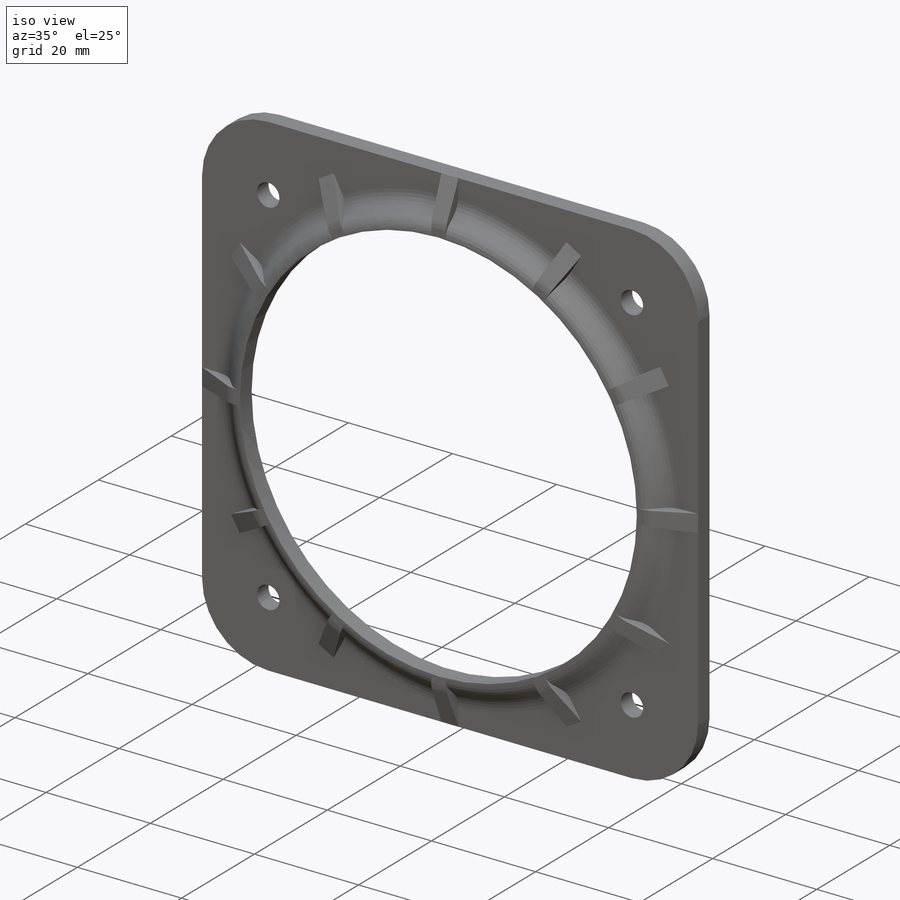
[diagram: iso view]
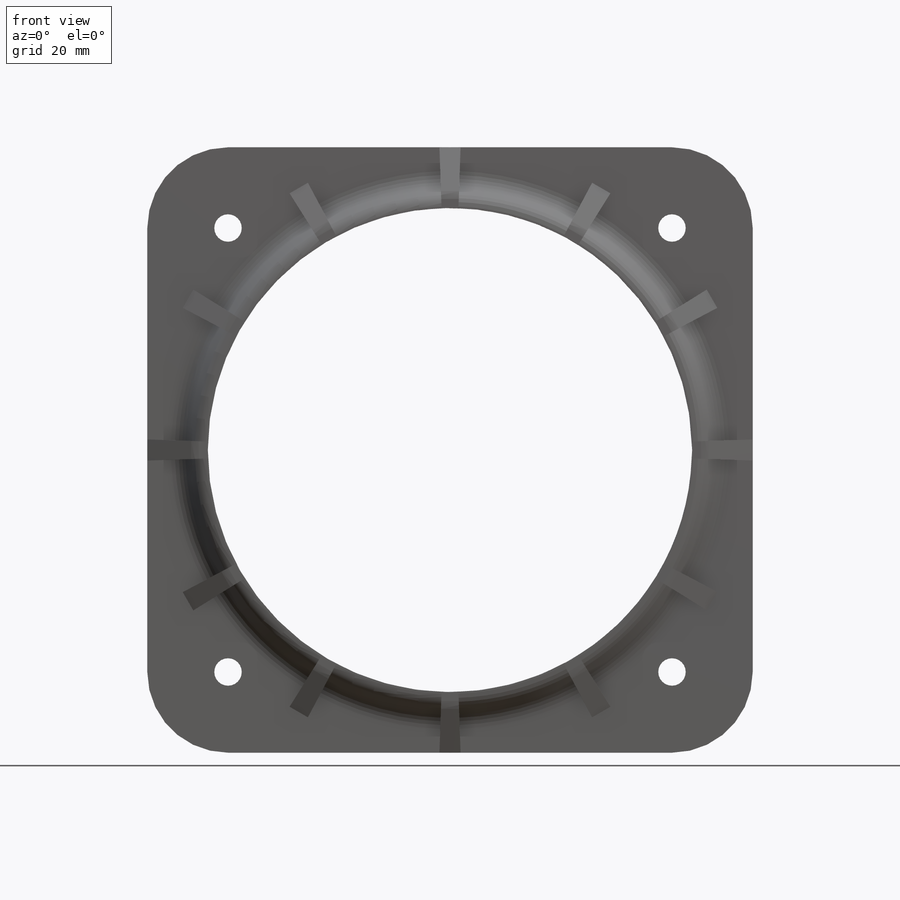
[diagram: front view]
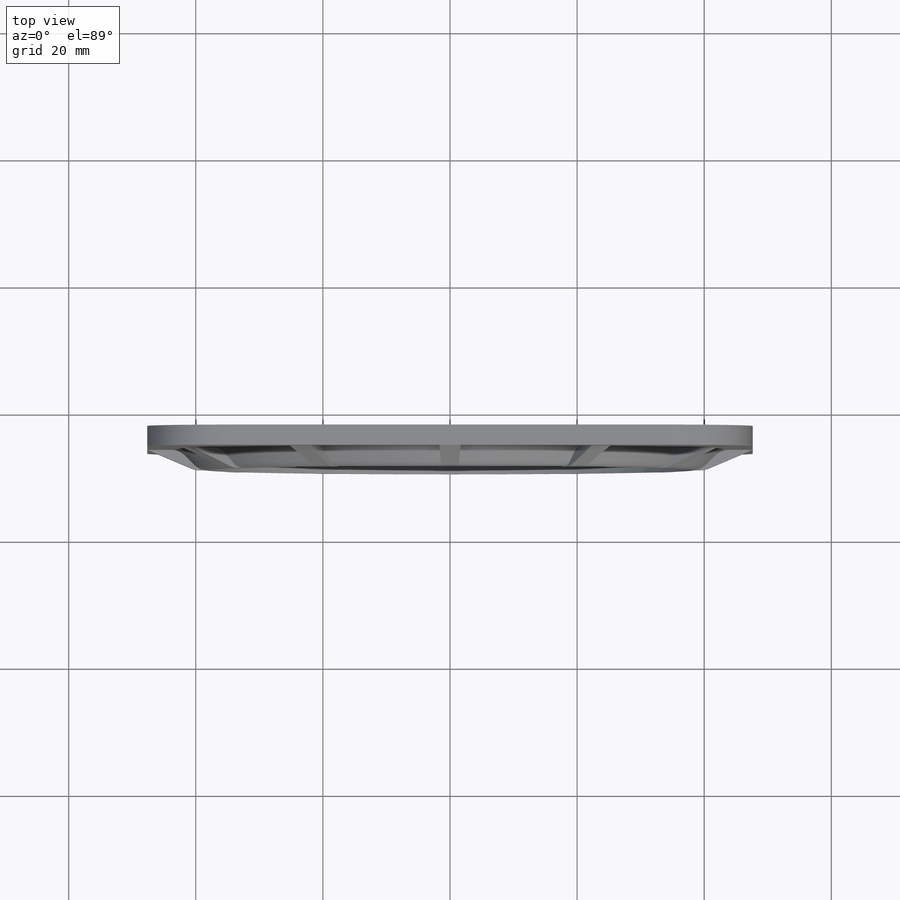
[diagram: top view]
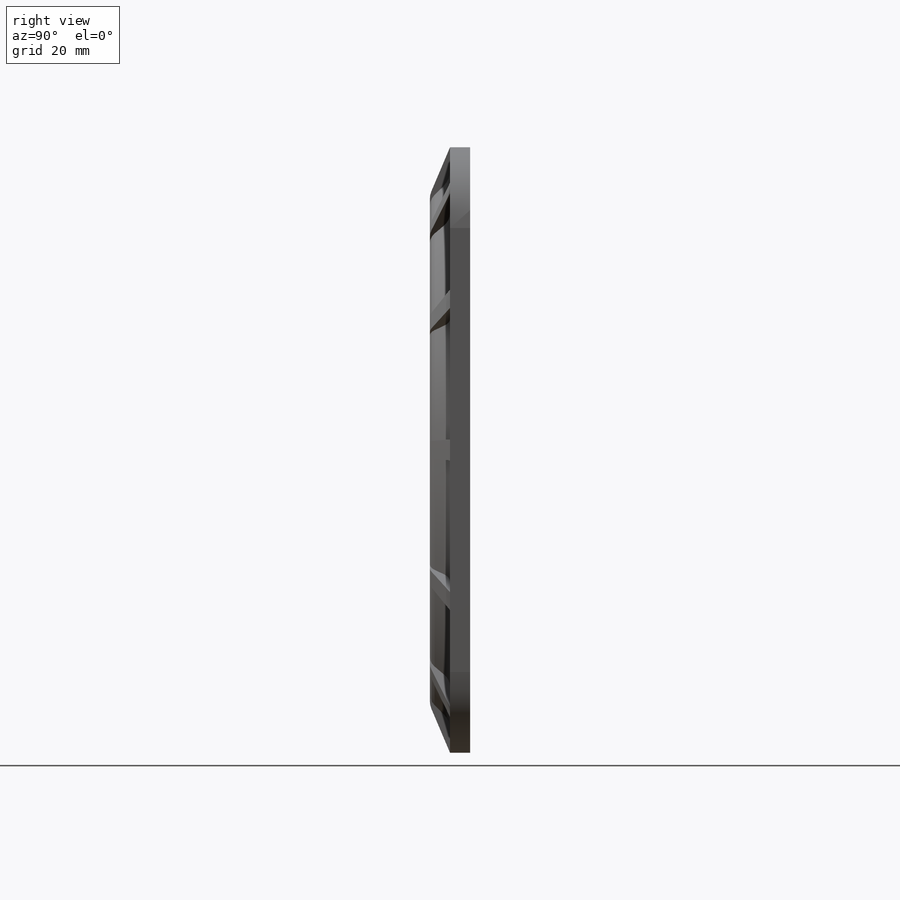
[diagram: right view]
SOLIDWORKS PART (.sldprt)
format: sldprt  version: not decoded by parser v0  size: 323,584 bytes
history: native  units: mm
features: sketch x2, material x1, move_body x1, shell x1, plane x1, cut_extrude x1, fillet x1, revolve x1, pattern_circular x1 + 1 further entry (+18 scaffold rows collapsed; 3 parser-record rows omitted)
feature tree (32):
  scaffold x18  (default folders/planes/origin — collapsed)
  material  "Material <not specified>"
  "Tube Clamp Plate A"
  parser-record x3  (decoder bookkeeping rows leaked as tree rows — omitted from the tree; the rows remain in map.json)
  move_body  "Body-Move/Copy2"
  shell  "Shell1"  Thickness=3.175mm
  plane  "Plane1"  Offset=3.175mm
  sketch  "Sketch2"
  cut_extrude  "Cut-Extrude1"  [1 undecoded]
  fillet  "Fillet1"  Radius=2.54mm
  sketch  "Sketch3"  dims[D1=3.175mm]
  revolve  "Revolve1"  Angle=2deg
  pattern_circular  "CirPattern1"  Count=12 Angle=360deg
decode coverage: 5 of 8 modeling features carry decoded parameters; 1 rows unclassified (native names shown)
note: 1 parameter value undecoded
note: suppression state not decoded; provenance and decode notes live in map.json
